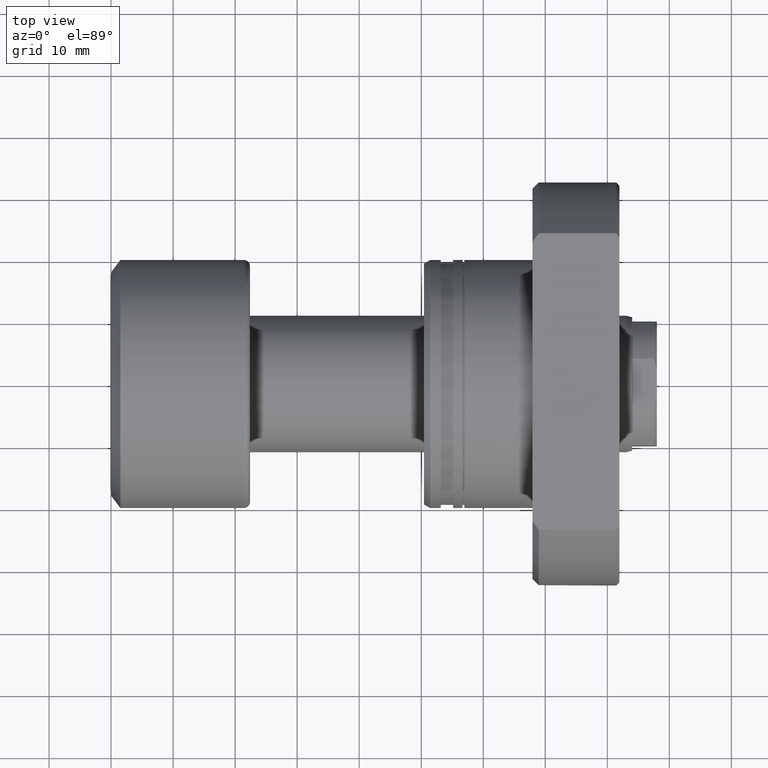
[diagram: clean part render]
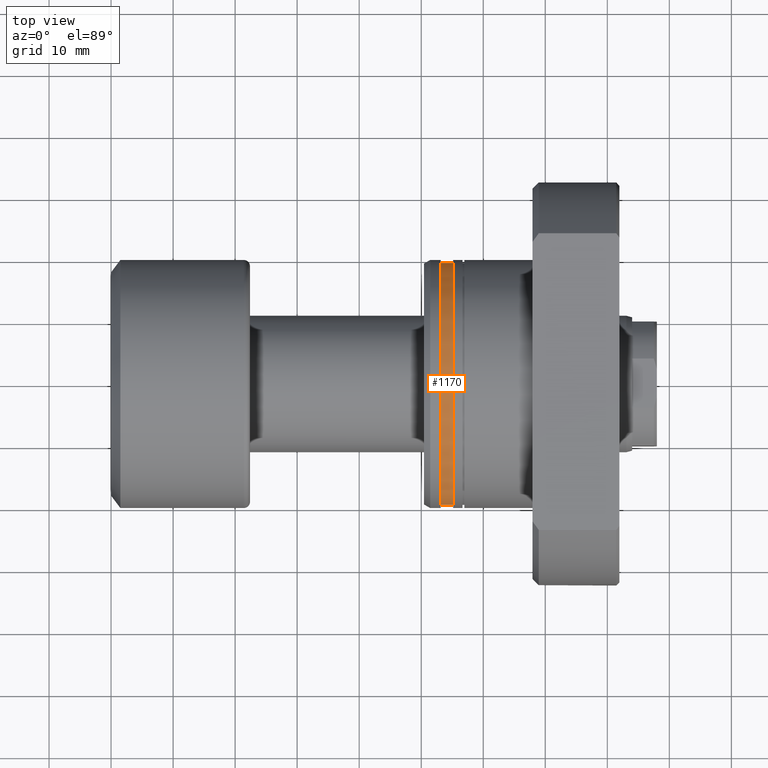
[diagram: same view with one face highlighted and labeled with its STEP entity id]
A machine part, top view. The second image highlights one B-rep face of the part: STEP entity #1170.
In plain terms, the highlighted cylindrical surface (partial cylindrical patch) has radius 19.5 mm, axis along (1, 0, 0).
Its self-contained STEP definition (entity closure, byte-faithful):
#178 = CARTESIAN_POINT ( 'NONE',  ( 31.50000000000000000, -19.49999999999999645, 2.388061258337338544E-15 ) ) ;
#179 = EDGE_CURVE ( 'NONE', #1845, #2305, #1954, .T. ) ;
#229 = CARTESIAN_POINT ( 'NONE',  ( 2.699999999999786127, 7.347880794883531049E-17, 0.000000000000000000 ) ) ;
#257 = VERTEX_POINT ( 'NONE', #2526 ) ;
#475 = VECTOR ( 'NONE', #1671, 1000.000000000000000 ) ;
#476 = DIRECTION ( 'NONE',  ( 1.000000000000000000, 2.721437331438560389E-17, -0.000000000000000000 ) ) ;
#499 = CARTESIAN_POINT ( 'NONE',  ( 4.699999999998548006, 19.49999999999999645, 0.000000000000000000 ) ) ;
#528 = CIRCLE ( 'NONE', #1147, 19.49999999999999645 ) ;
#717 = DIRECTION ( 'NONE',  ( 1.000000000000000000, 2.721437331438560389E-17, -0.000000000000000000 ) ) ;
#887 = AXIS2_PLACEMENT_3D ( 'NONE', #229, #1225, #2489 ) ;
#967 = DIRECTION ( 'NONE',  ( -4.448008912761044669E-17, 1.000000000000000000, 0.000000000000000000 ) ) ;
#979 = CYLINDRICAL_SURFACE ( 'NONE', #2811, 19.49999999999999645 ) ;
#1077 = EDGE_CURVE ( 'NONE', #3170, #257, #2977, .T. ) ;
#1093 = ORIENTED_EDGE ( 'NONE', *, *, #1185, .T. ) ;
#1133 = EDGE_CURVE ( 'NONE', #2305, #257, #528, .T. ) ;
#1147 = AXIS2_PLACEMENT_3D ( 'NONE', #3196, #717, #967 ) ;
#1170 = ADVANCED_FACE ( 'NONE', ( #2928 ), #979, .T. ) ;
#1185 = EDGE_CURVE ( 'NONE', #1845, #3170, #1561, .T. ) ;
#1225 = DIRECTION ( 'NONE',  ( 1.000000000000000000, 2.721437331438560389E-17, -0.000000000000000000 ) ) ;
#1471 = DIRECTION ( 'NONE',  ( 1.000000000000000000, 2.721437331438560389E-17, -0.000000000000000000 ) ) ;
#1561 = CIRCLE ( 'NONE', #887, 19.49999999999999289 ) ;
#1671 = DIRECTION ( 'NONE',  ( 1.000000000000000000, 2.721437331438560389E-17, -0.000000000000000000 ) ) ;
#1675 = EDGE_LOOP ( 'NONE', ( #1093, #2422, #2854, #2447 ) ) ;
#1690 = CARTESIAN_POINT ( 'NONE',  ( 31.50000000000000000, 8.572527594031465301E-16, 0.000000000000000000 ) ) ;
#1845 = VERTEX_POINT ( 'NONE', #2790 ) ;
#1954 = LINE ( 'NONE', #2708, #2691 ) ;
#2305 = VERTEX_POINT ( 'NONE', #499 ) ;
#2422 = ORIENTED_EDGE ( 'NONE', *, *, #1077, .T. ) ;
#2447 = ORIENTED_EDGE ( 'NONE', *, *, #179, .F. ) ;
#2489 = DIRECTION ( 'NONE',  ( -2.224004456380522643E-17, 1.000000000000000000, 0.000000000000000000 ) ) ;
#2526 = CARTESIAN_POINT ( 'NONE',  ( 4.699999999998549782, -19.49999999999999645, 2.388061258337338544E-15 ) ) ;
#2682 = DIRECTION ( 'NONE',  ( 0.000000000000000000, 1.000000000000000000, 0.000000000000000000 ) ) ;
#2691 = VECTOR ( 'NONE', #1471, 1000.000000000000000 ) ;
#2708 = CARTESIAN_POINT ( 'NONE',  ( 31.50000000000000000, 19.49999999999999645, 0.000000000000000000 ) ) ;
#2775 = CARTESIAN_POINT ( 'NONE',  ( 2.699999999999786127, -19.49999999999999289, 2.388061258337338150E-15 ) ) ;
#2790 = CARTESIAN_POINT ( 'NONE',  ( 2.699999999999785683, 19.49999999999999289, 0.000000000000000000 ) ) ;
#2811 = AXIS2_PLACEMENT_3D ( 'NONE', #1690, #476, #2682 ) ;
#2854 = ORIENTED_EDGE ( 'NONE', *, *, #1133, .F. ) ;
#2928 = FACE_OUTER_BOUND ( 'NONE', #1675, .T. ) ;
#2977 = LINE ( 'NONE', #178, #475 ) ;
#3170 = VERTEX_POINT ( 'NONE', #2775 ) ;
#3196 = CARTESIAN_POINT ( 'NONE',  ( 4.699999999998548894, 1.279075545775728376E-16, 0.000000000000000000 ) ) ;